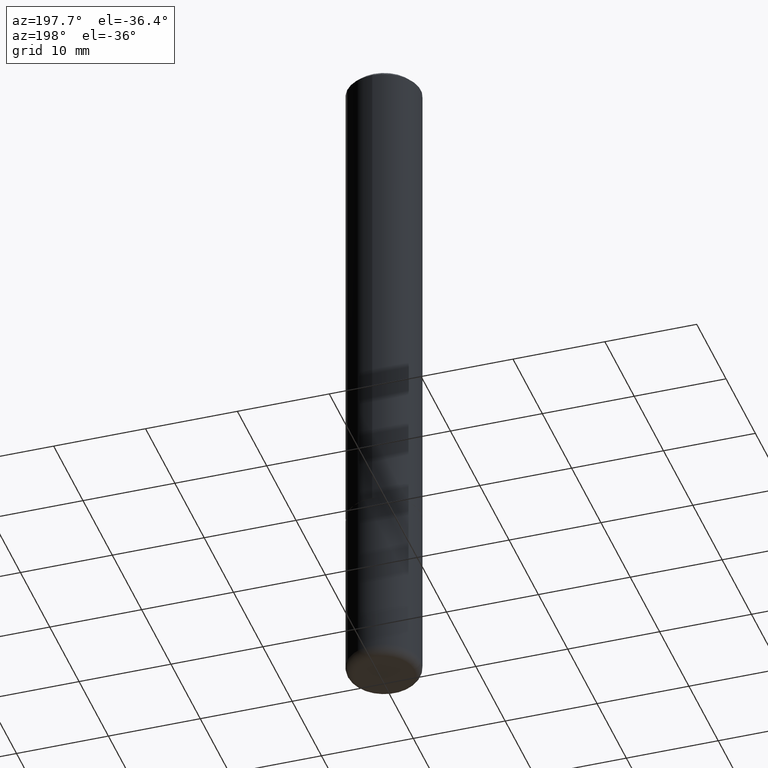
[diagram: clean part render]
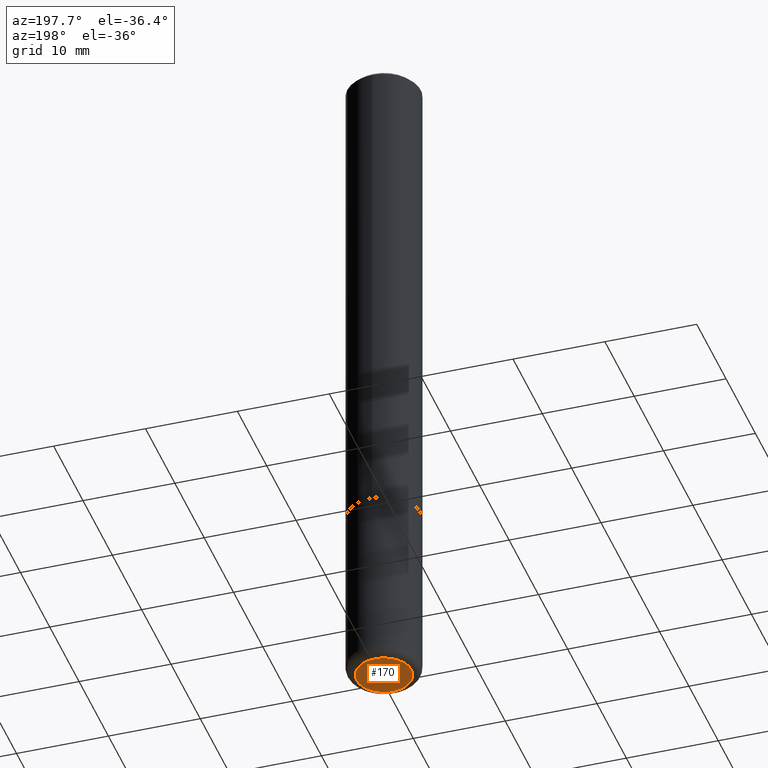
[diagram: same view with one face highlighted and labeled with its STEP entity id]
A machine part, auxiliary view. The second image highlights one B-rep face of the part: STEP entity #170.
In plain terms, the highlighted planar face has unit normal (0, -0, -1).
Its self-contained STEP definition (entity closure, byte-faithful):
#34 = ORIENTED_EDGE ( 'NONE', *, *, #260, .F. ) ;
#38 = CARTESIAN_POINT ( 'NONE',  ( 7.220980290903470182E-29, -1.030964609733603853E-14, -2.952799999999999869 ) ) ;
#47 = DIRECTION ( 'NONE',  ( 1.000000000000000000, -6.982962677686273021E-15, 0.000000000000000000 ) ) ;
#115 = PLANE ( 'NONE',  #311 ) ;
#120 = EDGE_LOOP ( 'NONE', ( #34, #289 ) ) ;
#159 = CIRCLE ( 'NONE', #357, 0.1180999999999999966 ) ;
#162 = DIRECTION ( 'NONE',  ( -2.445468806185136597E-29, 3.491481338843145583E-15, 1.000000000000000000 ) ) ;
#170 = ADVANCED_FACE ( 'NONE', ( #280 ), #115, .T. ) ;
#207 = DIRECTION ( 'NONE',  ( 2.438088387897960049E-29, -3.491481338843145188E-15, -1.000000000000000000 ) ) ;
#218 = VERTEX_POINT ( 'NONE', #339 ) ;
#242 = CARTESIAN_POINT ( 'NONE',  ( 7.220980290903470182E-29, -1.030964609733603853E-14, -2.952799999999999869 ) ) ;
#245 = CARTESIAN_POINT ( 'NONE',  ( 7.220980290903470182E-29, -1.030964609733603853E-14, -2.952799999999999869 ) ) ;
#254 = AXIS2_PLACEMENT_3D ( 'NONE', #242, #411, #47 ) ;
#260 = EDGE_CURVE ( 'NONE', #218, #359, #159, .T. ) ;
#266 = DIRECTION ( 'NONE',  ( 1.000000000000000000, -6.982962677686273021E-15, 0.000000000000000000 ) ) ;
#278 = CARTESIAN_POINT ( 'NONE',  ( -0.1180999999999999966, -9.261736025083411415E-15, -2.952799999999999869 ) ) ;
#280 = FACE_OUTER_BOUND ( 'NONE', #120, .T. ) ;
#284 = DIRECTION ( 'NONE',  ( -1.000000000000000000, 6.982962677686265922E-15, -4.876176775795935793E-29 ) ) ;
#289 = ORIENTED_EDGE ( 'NONE', *, *, #400, .F. ) ;
#311 = AXIS2_PLACEMENT_3D ( 'NONE', #245, #207, #284 ) ;
#339 = CARTESIAN_POINT ( 'NONE',  ( 0.1180999999999999966, -1.113433398957078679E-14, -2.952799999999999869 ) ) ;
#357 = AXIS2_PLACEMENT_3D ( 'NONE', #38, #162, #266 ) ;
#359 = VERTEX_POINT ( 'NONE', #278 ) ;
#388 = CIRCLE ( 'NONE', #254, 0.1180999999999999966 ) ;
#400 = EDGE_CURVE ( 'NONE', #359, #218, #388, .T. ) ;
#411 = DIRECTION ( 'NONE',  ( -2.445468806185136597E-29, 3.491481338843145583E-15, 1.000000000000000000 ) ) ;